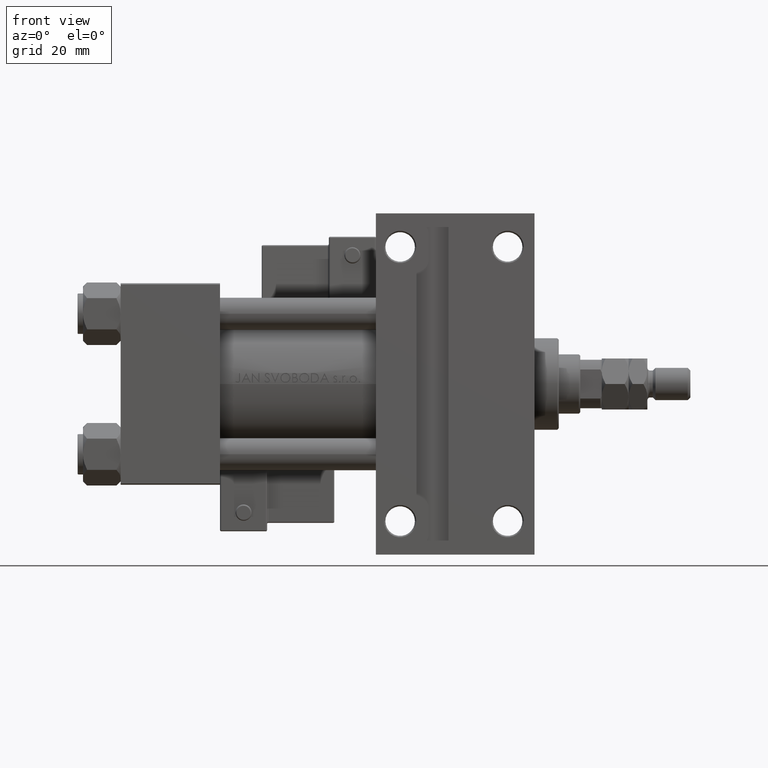
[diagram: clean part render]
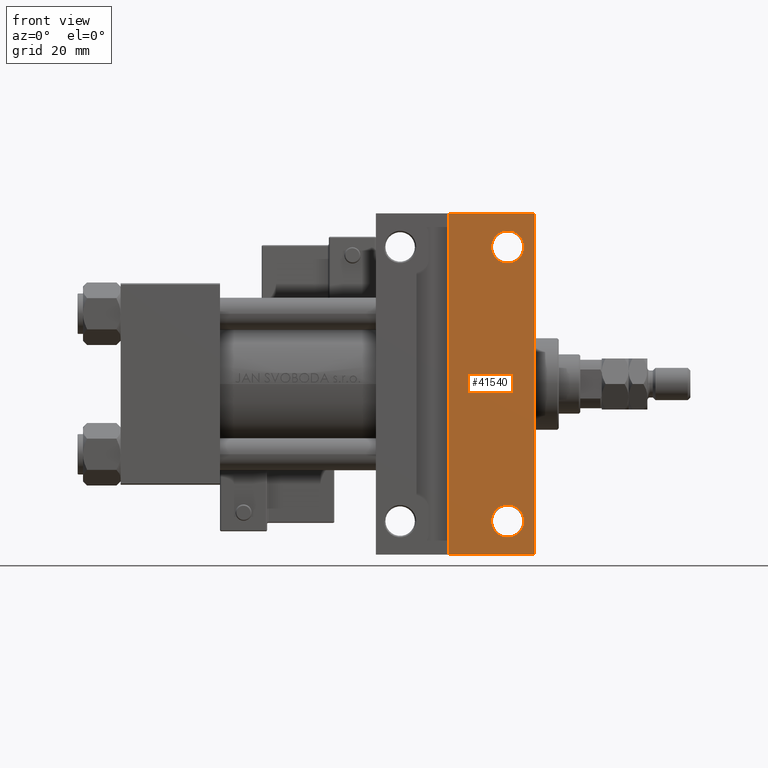
[diagram: same view with one face highlighted and labeled with its STEP entity id]
A machine part, front view. The second image highlights one B-rep face of the part: STEP entity #41540.
In plain terms, the highlighted planar face has unit normal (0, -1, 0).
Its self-contained STEP definition (entity closure, byte-faithful):
#48 = EDGE_CURVE ( 'NONE', #1355, #28362, #44422, .T. ) ;
#53 = AXIS2_PLACEMENT_3D ( 'NONE', #19092, #6877, #35207 ) ;
#804 = DIRECTION ( 'NONE',  ( -1.000000000000000000, 0.000000000000000000, -0.000000000000000000 ) ) ;
#1355 = VERTEX_POINT ( 'NONE', #26722 ) ;
#2148 = DIRECTION ( 'NONE',  ( -1.000000000000000000, 0.000000000000000000, 0.000000000000000000 ) ) ;
#3085 = AXIS2_PLACEMENT_3D ( 'NONE', #25510, #49187, #2148 ) ;
#3708 = VERTEX_POINT ( 'NONE', #28644 ) ;
#3954 = LINE ( 'NONE', #31497, #37344 ) ;
#4386 = CARTESIAN_POINT ( 'NONE',  ( 122.0000000000000000, -63.50000000000000000, -37.50000000000000000 ) ) ;
#4539 = ORIENTED_EDGE ( 'NONE', *, *, #37474, .T. ) ;
#4993 = CIRCLE ( 'NONE', #53, 5.999499999999990507 ) ;
#5438 = CARTESIAN_POINT ( 'NONE',  ( 149.9994999999999550, 51.00000000000000000, -37.50000000000000000 ) ) ;
#6063 = VERTEX_POINT ( 'NONE', #37235 ) ;
#6877 = DIRECTION ( 'NONE',  ( -0.000000000000000000, -0.000000000000000000, 1.000000000000000000 ) ) ;
#8484 = ORIENTED_EDGE ( 'NONE', *, *, #48, .T. ) ;
#9503 = DIRECTION ( 'NONE',  ( -0.000000000000000000, -0.000000000000000000, 1.000000000000000000 ) ) ;
#10838 = VERTEX_POINT ( 'NONE', #11720 ) ;
#11720 = CARTESIAN_POINT ( 'NONE',  ( 153.9999999999999716, -63.50000000000002842, -37.50000000000000000 ) ) ;
#12959 = VECTOR ( 'NONE', #26556, 1000.000000000000000 ) ;
#13216 = PLANE ( 'NONE',  #19944 ) ;
#13315 = ORIENTED_EDGE ( 'NONE', *, *, #37677, .T. ) ;
#13865 = CARTESIAN_POINT ( 'NONE',  ( 143.9999999999999716, 51.00000000000000000, -37.50000000000000000 ) ) ;
#14739 = EDGE_CURVE ( 'NONE', #3708, #41611, #19335, .T. ) ;
#15835 = ORIENTED_EDGE ( 'NONE', *, *, #29681, .F. ) ;
#16360 = CARTESIAN_POINT ( 'NONE',  ( 154.0000000000000000, 37.50000000000000000, -37.50000000000000000 ) ) ;
#17332 = EDGE_LOOP ( 'NONE', ( #19290, #4539 ) ) ;
#18540 = DIRECTION ( 'NONE',  ( -0.000000000000000000, -0.000000000000000000, 1.000000000000000000 ) ) ;
#19092 = CARTESIAN_POINT ( 'NONE',  ( 143.9999999999999716, 51.00000000000000000, -37.50000000000000000 ) ) ;
#19200 = CARTESIAN_POINT ( 'NONE',  ( 154.0000000000000000, 63.50000000000000000, -37.50000000000000000 ) ) ;
#19290 = ORIENTED_EDGE ( 'NONE', *, *, #14739, .T. ) ;
#19335 = CIRCLE ( 'NONE', #33528, 5.999499999999990507 ) ;
#19944 = AXIS2_PLACEMENT_3D ( 'NONE', #16360, #36384, #804 ) ;
#20009 = FACE_BOUND ( 'NONE', #17332, .T. ) ;
#20782 = FACE_BOUND ( 'NONE', #47420, .T. ) ;
#21437 = CARTESIAN_POINT ( 'NONE',  ( 94.99999999999998579, -63.50000000000000000, -37.50000000000000000 ) ) ;
#22706 = DIRECTION ( 'NONE',  ( -1.000000000000000000, 0.000000000000000000, 0.000000000000000000 ) ) ;
#22719 = EDGE_CURVE ( 'NONE', #10838, #48191, #40938, .T. ) ;
#22799 = VECTOR ( 'NONE', #36093, 1000.000000000000000 ) ;
#23871 = EDGE_LOOP ( 'NONE', ( #15835, #8484, #13315, #31621 ) ) ;
#24149 = CARTESIAN_POINT ( 'NONE',  ( 95.00000000000000000, 63.50000000000000000, -37.50000000000000000 ) ) ;
#24939 = EDGE_CURVE ( 'NONE', #27812, #6063, #50424, .T. ) ;
#25510 = CARTESIAN_POINT ( 'NONE',  ( 143.9999999999999716, -51.00000000000000000, -37.50000000000000000 ) ) ;
#26556 = DIRECTION ( 'NONE',  ( -1.000000000000000000, 4.704334850106596780E-16, -0.000000000000000000 ) ) ;
#26722 = CARTESIAN_POINT ( 'NONE',  ( 122.0000000000000000, 63.50000000000000000, -37.50000000000000000 ) ) ;
#27812 = VERTEX_POINT ( 'NONE', #46239 ) ;
#28031 = VECTOR ( 'NONE', #35852, 1000.000000000000000 ) ;
#28362 = VERTEX_POINT ( 'NONE', #19200 ) ;
#28644 = CARTESIAN_POINT ( 'NONE',  ( 138.0004999999999598, 51.00000000000000000, -37.50000000000000000 ) ) ;
#29681 = EDGE_CURVE ( 'NONE', #1355, #48191, #33387, .T. ) ;
#31497 = CARTESIAN_POINT ( 'NONE',  ( 154.0000000000000000, 37.50000000000000000, -37.50000000000000000 ) ) ;
#31621 = ORIENTED_EDGE ( 'NONE', *, *, #22719, .T. ) ;
#31970 = FACE_OUTER_BOUND ( 'NONE', #23871, .T. ) ;
#32898 = ORIENTED_EDGE ( 'NONE', *, *, #49302, .T. ) ;
#33387 = LINE ( 'NONE', #4386, #22799 ) ;
#33413 = CARTESIAN_POINT ( 'NONE',  ( 143.9999999999999716, -51.00000000000000000, -37.50000000000000000 ) ) ;
#33528 = AXIS2_PLACEMENT_3D ( 'NONE', #13865, #18540, #22706 ) ;
#34713 = ORIENTED_EDGE ( 'NONE', *, *, #24939, .T. ) ;
#35207 = DIRECTION ( 'NONE',  ( -1.000000000000000000, 0.000000000000000000, 0.000000000000000000 ) ) ;
#35852 = DIRECTION ( 'NONE',  ( 1.000000000000000000, 0.000000000000000000, 0.000000000000000000 ) ) ;
#36093 = DIRECTION ( 'NONE',  ( -0.000000000000000000, -1.000000000000000000, -0.000000000000000000 ) ) ;
#36384 = DIRECTION ( 'NONE',  ( 0.000000000000000000, 0.000000000000000000, -1.000000000000000000 ) ) ;
#37235 = CARTESIAN_POINT ( 'NONE',  ( 149.9994999999999550, -51.00000000000000000, -37.50000000000000000 ) ) ;
#37344 = VECTOR ( 'NONE', #48132, 1000.000000000000000 ) ;
#37474 = EDGE_CURVE ( 'NONE', #41611, #3708, #4993, .T. ) ;
#37628 = CIRCLE ( 'NONE', #50948, 5.999499999999990507 ) ;
#37677 = EDGE_CURVE ( 'NONE', #28362, #10838, #3954, .T. ) ;
#40938 = LINE ( 'NONE', #21437, #12959 ) ;
#41220 = DIRECTION ( 'NONE',  ( -1.000000000000000000, 0.000000000000000000, 0.000000000000000000 ) ) ;
#41540 = ADVANCED_FACE ( 'NONE', ( #31970, #20782, #20009 ), #13216, .T. ) ;
#41611 = VERTEX_POINT ( 'NONE', #5438 ) ;
#44422 = LINE ( 'NONE', #24149, #28031 ) ;
#44974 = CARTESIAN_POINT ( 'NONE',  ( 122.0000000000000000, -63.50000000000000000, -37.50000000000000000 ) ) ;
#46239 = CARTESIAN_POINT ( 'NONE',  ( 138.0004999999999598, -51.00000000000000000, -37.50000000000000000 ) ) ;
#47420 = EDGE_LOOP ( 'NONE', ( #34713, #32898 ) ) ;
#48132 = DIRECTION ( 'NONE',  ( 0.000000000000000000, -1.000000000000000000, 0.000000000000000000 ) ) ;
#48191 = VERTEX_POINT ( 'NONE', #44974 ) ;
#49187 = DIRECTION ( 'NONE',  ( -0.000000000000000000, -0.000000000000000000, 1.000000000000000000 ) ) ;
#49302 = EDGE_CURVE ( 'NONE', #6063, #27812, #37628, .T. ) ;
#50424 = CIRCLE ( 'NONE', #3085, 5.999499999999990507 ) ;
#50948 = AXIS2_PLACEMENT_3D ( 'NONE', #33413, #9503, #41220 ) ;